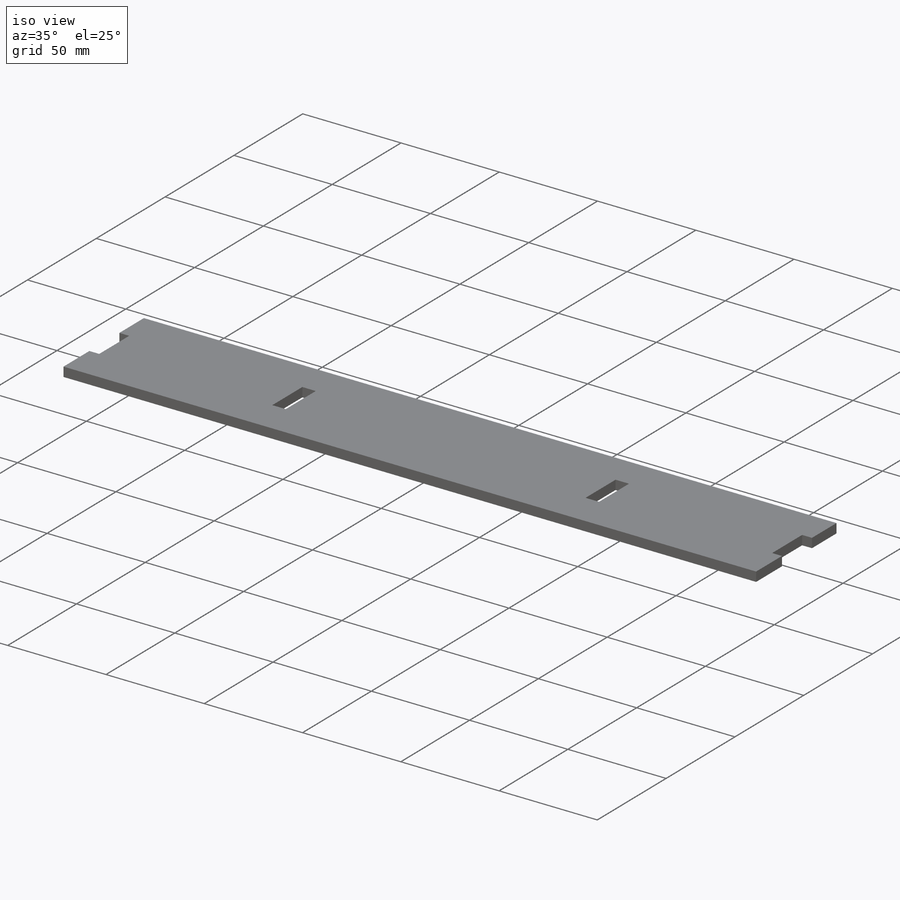
[diagram: iso view]
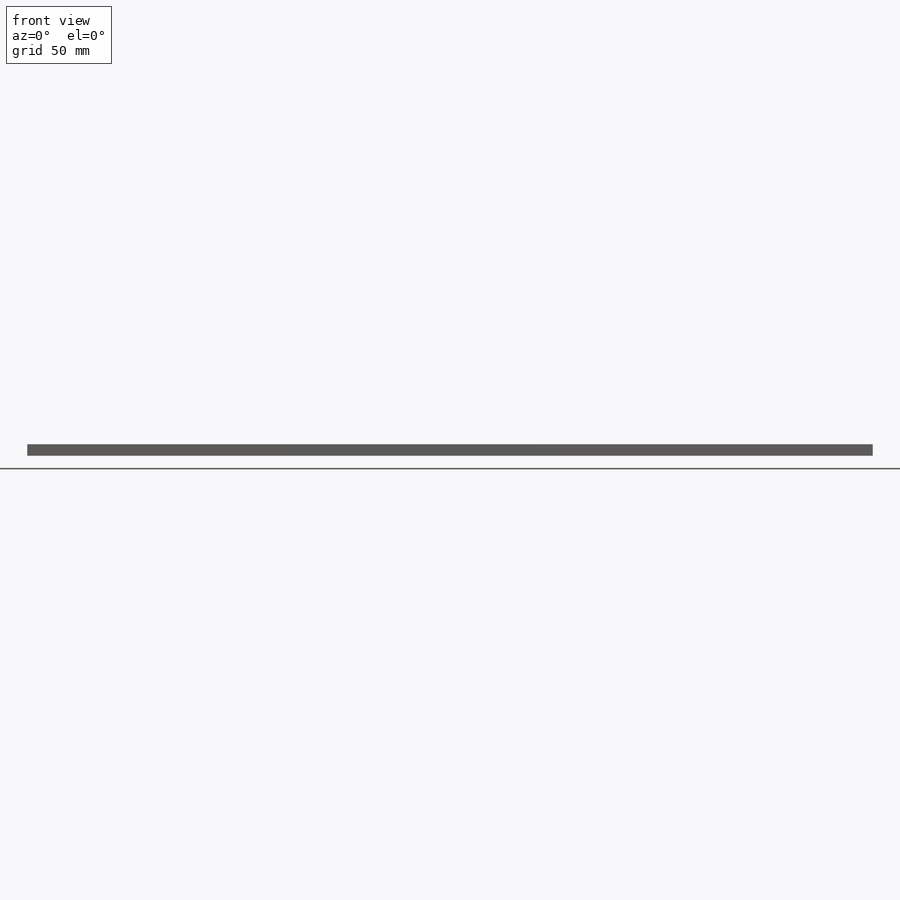
[diagram: front view]
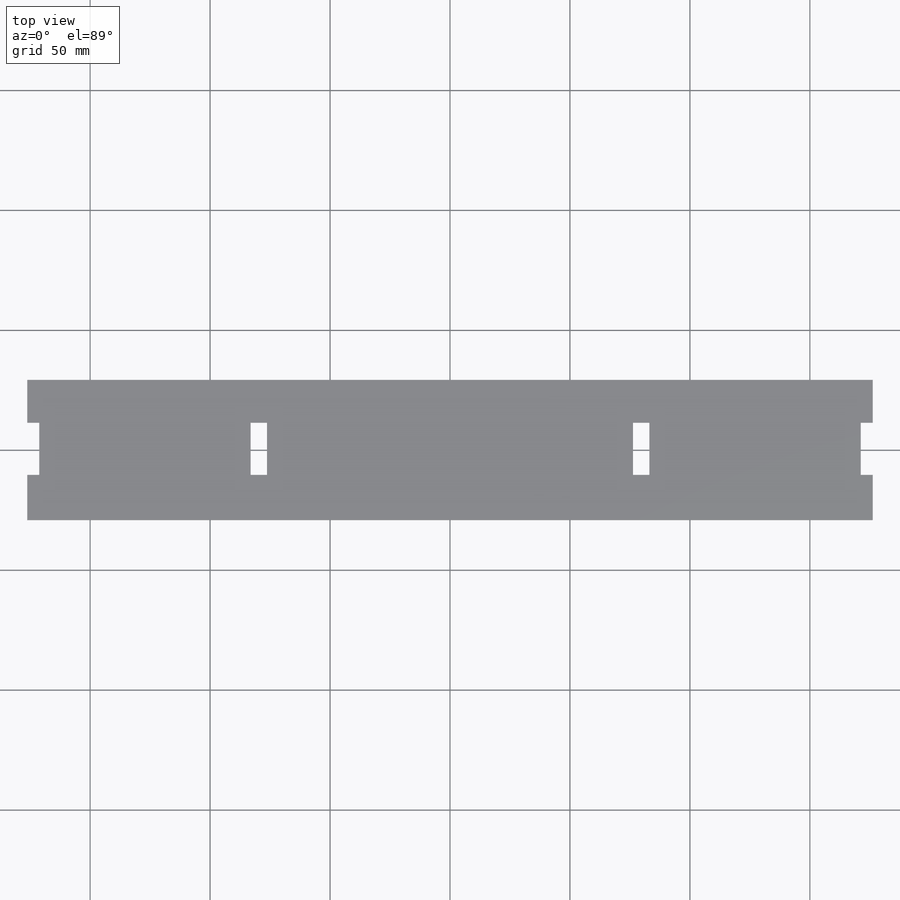
[diagram: top view]
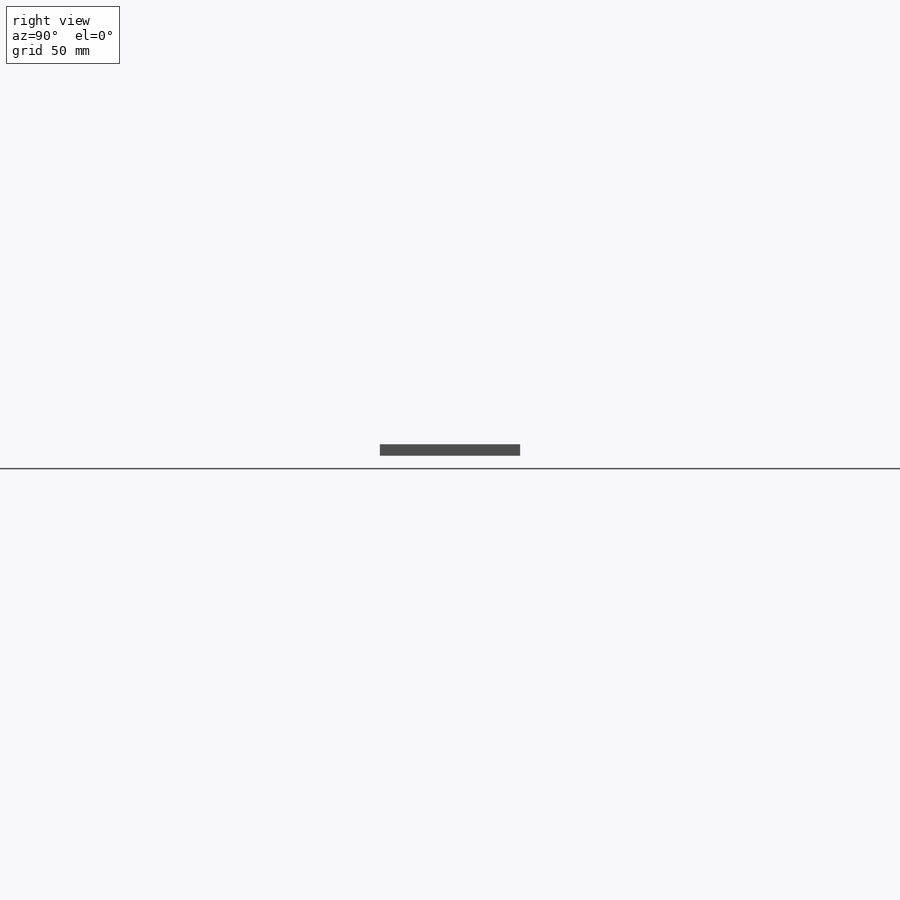
[diagram: right view]
SOLIDWORKS PART (.sldprt)
format: sldprt  version: not decoded by parser v0  size: 273,920 bytes
history: native  units: mm
features: sketch x6, cut_extrude x4, extrude x2, material x1 (+13 scaffold rows collapsed)
feature tree (26):
  scaffold x13  (default folders/planes/origin — collapsed)
  material  "Plain Carbon Steel"
  sketch  "Sketch1"  dims[D1=177.8mm D2=29.21mm]
  extrude  "Boss-Extrude1"  Depth=4.7625mm
  sketch  "Sketch2"  dims[c1.D1=~18.917336mm c1.D2=~2.66025mm c2.D1=~21.298929mm c2.D2=6.35mm c3.D1=~21.298929mm c3.D2=6.35mm c4.D1=~21.298929mm c4.D2=6.35mm c5.D1=~21.298929mm c5.D2=6.35mm c6.D1=0.254mm]
  cut_extrude  "Cut-Extrude1"  [1 undecoded]
  sketch  "Sketch3"  dims[D2=1.5875mm D3=1.5875mm D1=0.0mm]
  cut_extrude  "Cut-Extrude2"  [1 undecoded]
  sketch  "Sketch4"  dims[c1.D1=~25.67941mm c1.D2=~34.610757mm c2.D1=~21.806929mm c2.D2=~2.487467mm c3.D1=152.527mm]
  extrude  "Boss-Extrude2"  [1 undecoded]
  sketch  "Sketch5"  dims[c1.D1=~31.760528mm c1.D2=~14.383368mm c2.D1=~28.898507mm c2.D2=~13.064967mm c3.D1=6.858mm]
  cut_extrude  "Cut-Extrude3"  [1 undecoded]
  sketch  "Sketch6"  dims[D1=~0.663884mm]
  cut_extrude  "Cut-Extrude4"  [1 undecoded]
decode coverage: 7 of 12 modeling features carry decoded parameters
note: ~ marks probable driven/reference dimensions
note: 5 parameter values undecoded
summary: no parameter record found for 5 features
note: suppression state not decoded; provenance and decode notes live in map.json
